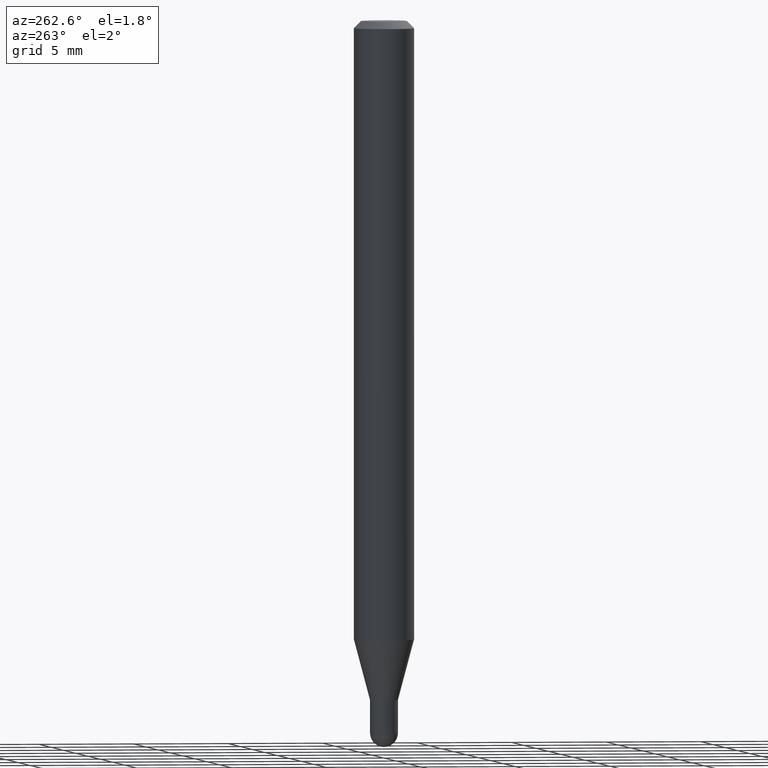
[diagram: clean part render]
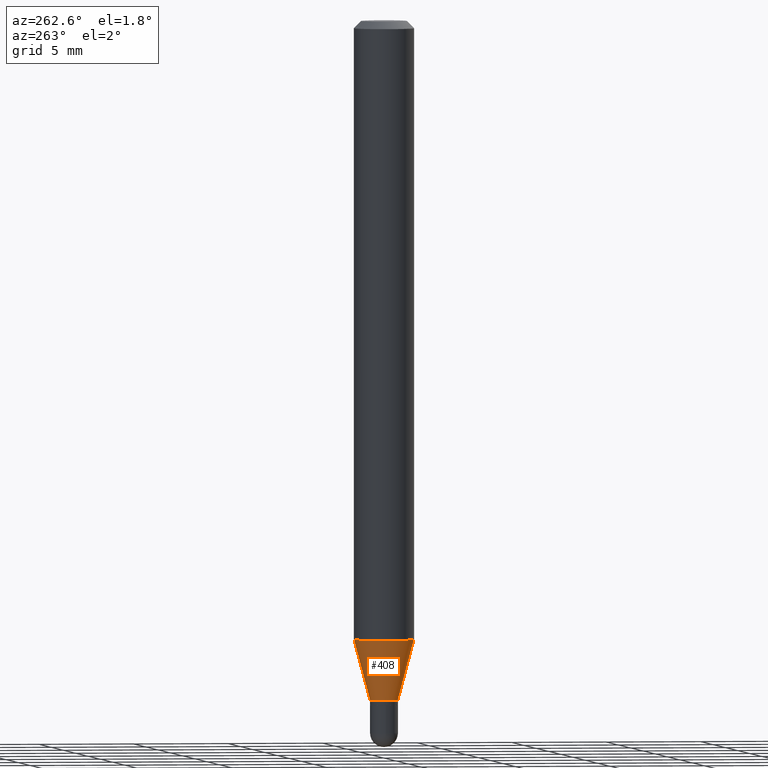
[diagram: same view with one face highlighted and labeled with its STEP entity id]
A machine part, auxiliary view. The second image highlights one B-rep face of the part: STEP entity #408.
In plain terms, the highlighted conical surface has half-angle 15 deg.
Its self-contained STEP definition (entity closure, byte-faithful):
#11 = EDGE_LOOP ( 'NONE', ( #65, #201, #116, #58 ) ) ;
#19 = VERTEX_POINT ( 'NONE', #483 ) ;
#21 = EDGE_CURVE ( 'NONE', #19, #365, #290, .T. ) ;
#27 = VECTOR ( 'NONE', #436, 39.37007874015748854 ) ;
#34 = DIRECTION ( 'NONE',  ( -6.982962677686265922E-15, -1.000000000000000000, 0.000000000000000000 ) ) ;
#58 = ORIENTED_EDGE ( 'NONE', *, *, #147, .F. ) ;
#61 = DIRECTION ( 'NONE',  ( -6.982962677686265922E-15, -1.000000000000000000, 0.000000000000000000 ) ) ;
#65 = ORIENTED_EDGE ( 'NONE', *, *, #491, .F. ) ;
#71 = DIRECTION ( 'NONE',  ( -2.445464526639804686E-29, 3.491487467395637572E-15, 1.000000000000000000 ) ) ;
#76 = CARTESIAN_POINT ( 'NONE',  ( 3.430986730875647488E-29, -4.898556916756080332E-15, -1.403000000000000247 ) ) ;
#116 = ORIENTED_EDGE ( 'NONE', *, *, #163, .T. ) ;
#129 = LINE ( 'NONE', #263, #286 ) ;
#135 = CONICAL_SURFACE ( 'NONE', #298, 0.02899999999999992514, 0.2617993877991505736 ) ;
#147 = EDGE_CURVE ( 'NONE', #390, #317, #254, .T. ) ;
#163 = EDGE_CURVE ( 'NONE', #365, #317, #446, .T. ) ;
#200 = DIRECTION ( 'NONE',  ( -2.445464526639804686E-29, 3.491487467395637572E-15, 1.000000000000000000 ) ) ;
#201 = ORIENTED_EDGE ( 'NONE', *, *, #21, .T. ) ;
#238 = FACE_OUTER_BOUND ( 'NONE', #11, .T. ) ;
#249 = CARTESIAN_POINT ( 'NONE',  ( -4.364351673553605587E-16, -0.06250000000000449640, -1.277976297946442852 ) ) ;
#254 = CIRCLE ( 'NONE', #374, 0.06250000000000000000 ) ;
#263 = CARTESIAN_POINT ( 'NONE',  ( 2.060573933704627882E-16, 0.02899999999999502281, -1.403000000000000247 ) ) ;
#286 = VECTOR ( 'NONE', #344, 39.37007874015748143 ) ;
#290 = CIRCLE ( 'NONE', #331, 0.02899999999999992514 ) ;
#298 = AXIS2_PLACEMENT_3D ( 'NONE', #76, #419, #61 ) ;
#317 = VERTEX_POINT ( 'NONE', #249 ) ;
#321 = DIRECTION ( 'NONE',  ( -6.982962677686265922E-15, -1.000000000000000000, 4.370956789862821150E-15 ) ) ;
#331 = AXIS2_PLACEMENT_3D ( 'NONE', #437, #71, #34 ) ;
#344 = DIRECTION ( 'NONE',  ( 1.839019923739602287E-15, 0.2588190451025252359, 0.9659258262890670910 ) ) ;
#365 = VERTEX_POINT ( 'NONE', #495 ) ;
#374 = AXIS2_PLACEMENT_3D ( 'NONE', #481, #200, #321 ) ;
#390 = VERTEX_POINT ( 'NONE', #479 ) ;
#408 = ADVANCED_FACE ( 'NONE', ( #238 ), #135, .T. ) ;
#419 = DIRECTION ( 'NONE',  ( -2.445464526639804686E-29, 3.491487467395637572E-15, 1.000000000000000000 ) ) ;
#436 = DIRECTION ( 'NONE',  ( -1.807323732225332111E-15, -0.2588190451025184635, 0.9659258262890689783 ) ) ;
#437 = CARTESIAN_POINT ( 'NONE',  ( 3.430986730875647488E-29, -4.898556916756080332E-15, -1.403000000000000247 ) ) ;
#446 = LINE ( 'NONE', #484, #27 ) ;
#479 = CARTESIAN_POINT ( 'NONE',  ( 4.440892098500935790E-16, 0.06249999999999551054, -1.277976297946443518 ) ) ;
#481 = CARTESIAN_POINT ( 'NONE',  ( 3.125245702514488785E-29, -4.462038227908679794E-15, -1.277976297946443296 ) ) ;
#483 = CARTESIAN_POINT ( 'NONE',  ( 3.250733016102783684E-16, 0.02899999999999502281, -1.403000000000000247 ) ) ;
#484 = CARTESIAN_POINT ( 'NONE',  ( -2.025059176528669025E-16, -0.02900000000000482400, -1.403000000000000247 ) ) ;
#491 = EDGE_CURVE ( 'NONE', #19, #390, #129, .T. ) ;
#495 = CARTESIAN_POINT ( 'NONE',  ( -2.025059176528669025E-16, -0.02900000000000482400, -1.403000000000000247 ) ) ;